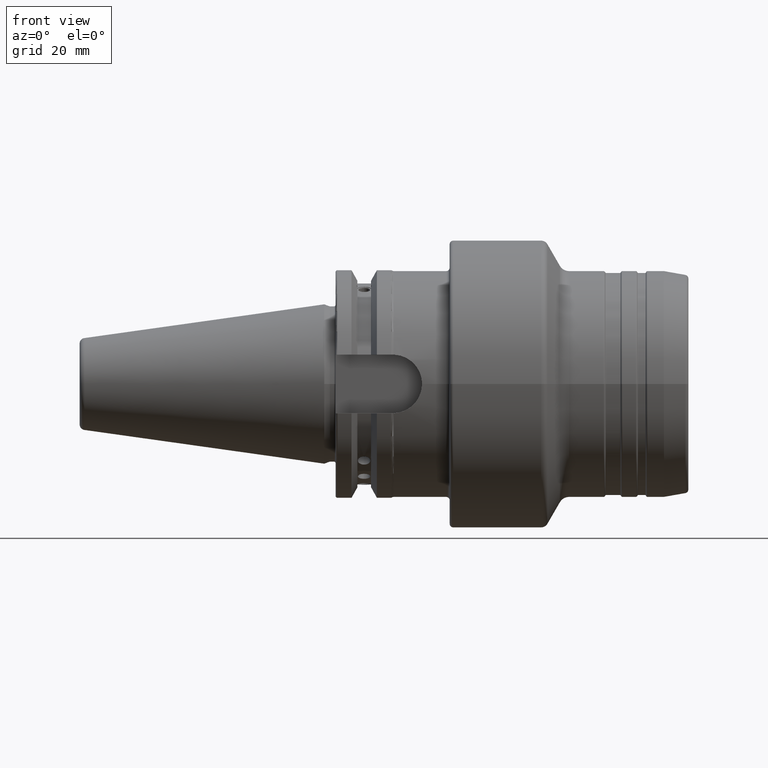
[diagram: clean part render]
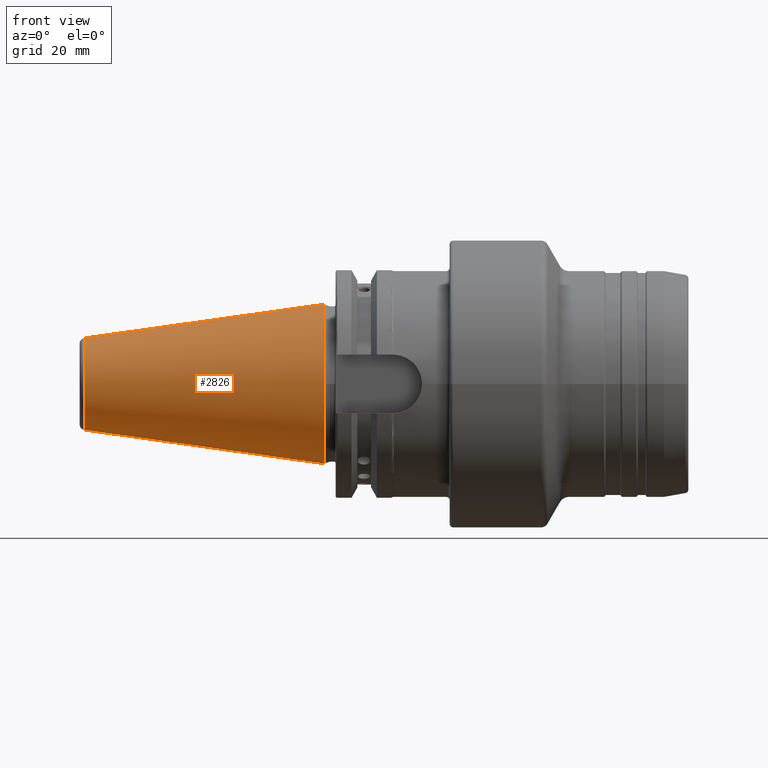
[diagram: same view with one face highlighted and labeled with its STEP entity id]
A machine part, front view. The second image highlights one B-rep face of the part: STEP entity #2826.
In plain terms, the highlighted conical surface has half-angle 8 deg.
Its self-contained STEP definition (entity closure, byte-faithful):
#21=CARTESIAN_POINT('',(9.404160894455E-6,0.E0,-8.750350968063E-1));
#39=CARTESIAN_POINT('',(9.404160894899E-6,0.E0,8.750350968063E-1));
#40=CARTESIAN_POINT('',(9.404160894940E-6,-4.579037552743E-2,
8.750350968063E-1));
#41=CARTESIAN_POINT('',(4.001135143371E-4,-1.373905519960E-1,
8.678370960029E-1));
#42=CARTESIAN_POINT('',(2.430634477279E-4,-2.714571991100E-1,
8.356601185359E-1));
#43=CARTESIAN_POINT('',(2.851996840013E-4,-3.988534876110E-1,
7.829006255476E-1));
#44=CARTESIAN_POINT('',(2.737048055116E-4,-5.164185767630E-1,
7.108648007007E-1));
#45=CARTESIAN_POINT('',(2.775480831918E-4,-6.212704616941E-1,
6.213213286738E-1));
#46=CARTESIAN_POINT('',(2.736698509498E-4,-7.108219821237E-1,
5.164781244212E-1));
#47=CARTESIAN_POINT('',(2.853395022269E-4,-7.828674017787E-1,
3.989159160235E-1));
#48=CARTESIAN_POINT('',(2.425391293499E-4,-8.356412448259E-1,
2.715298521811E-1));
#49=CARTESIAN_POINT('',(4.020709695703E-4,-8.678091184727E-1,
1.374582554541E-1));
#50=CARTESIAN_POINT('',(5.186310889964E-6,-8.750759621837E-1,
4.581760021255E-2));
#51=CARTESIAN_POINT('',(5.184256354429E-6,-8.750759618949E-1,
-8.684607494127E-10));
#53=CARTESIAN_POINT('',(5.184256354429E-6,-8.750759618949E-1,
-8.684607494127E-10));
#54=CARTESIAN_POINT('',(5.185977047086E-6,-8.750759621367E-1,
-4.581760194087E-2));
#55=CARTESIAN_POINT('',(4.020711245056E-4,-8.678091184959E-1,
-1.374582546258E-1));
#56=CARTESIAN_POINT('',(2.425390878299E-4,-8.356412448387E-1,
-2.715298523387E-1));
#57=CARTESIAN_POINT('',(2.853395133448E-4,-7.828674017975E-1,
-3.989159159341E-1));
#58=CARTESIAN_POINT('',(2.736698479611E-4,-7.108219821412E-1,
-5.164781244139E-1));
#59=CARTESIAN_POINT('',(2.775480839808E-4,-6.212704616938E-1,
-6.213213286701E-1));
#60=CARTESIAN_POINT('',(2.737048052858E-4,-5.164185767854E-1,
-7.108648006840E-1));
#61=CARTESIAN_POINT('',(2.851996840459E-4,-3.988534876344E-1,
-7.829006255362E-1));
#62=CARTESIAN_POINT('',(2.430634477005E-4,-2.714571991277E-1,
-8.356601185298E-1));
#63=CARTESIAN_POINT('',(4.001135143223E-4,-1.373905520255E-1,
-8.678370959983E-1));
#64=CARTESIAN_POINT('',(9.404160894441E-6,-4.579037553948E-2,
-8.750350968063E-1));
#65=CARTESIAN_POINT('',(9.404160894455E-6,0.E0,-8.750350968063E-1));
#67=DIRECTION('',(-9.902663201239E-1,9.568653732772E-12,1.391855424545E-1));
#68=VECTOR('',#67,2.662132967208E0);
#69=CARTESIAN_POINT('',(9.404160894455E-6,0.E0,-8.750350968063E-1));
#70=LINE('',#69,#68);
#71=CARTESIAN_POINT('',(-2.636211212957E0,0.E0,0.E0));
#72=DIRECTION('',(-1.E0,0.E0,0.E0));
#73=DIRECTION('',(0.E0,0.E0,-1.E0));
#74=AXIS2_PLACEMENT_3D('',#71,#72,#73);
#76=DIRECTION('',(-9.902663201239E-1,-9.568651588075E-12,-1.391855424545E-1));
#77=VECTOR('',#76,2.662132967208E0);
#78=CARTESIAN_POINT('',(9.404160894899E-6,0.E0,8.750350968063E-1));
#79=LINE('',#78,#77);
#2419=CARTESIAN_POINT('',(-2.636211212957E0,0.E0,-5.045046756793E-1));
#2420=CARTESIAN_POINT('',(-2.636211212957E0,0.E0,5.045046756793E-1));
#2421=VERTEX_POINT('',#2419);
#2422=VERTEX_POINT('',#2420);
#2423=VERTEX_POINT('',#39);
#2424=VERTEX_POINT('',#51);
#2430=VERTEX_POINT('',#21);
#2812=CARTESIAN_POINT('',(-1.317954174432E0,0.E0,0.E0));
#2813=DIRECTION('',(1.E0,0.E0,0.E0));
#2814=DIRECTION('',(0.E0,0.E0,1.E0));
#2815=AXIS2_PLACEMENT_3D('',#2812,#2813,#2814);
#2816=CONICAL_SURFACE('',#2815,6.897736202258E-1,8.E0);
#2817=ORIENTED_EDGE('',*,*,#2800,.T.);
#2819=ORIENTED_EDGE('',*,*,#2818,.T.);
#2820=ORIENTED_EDGE('',*,*,#2788,.T.);
#2822=ORIENTED_EDGE('',*,*,#2821,.T.);
#2823=ORIENTED_EDGE('',*,*,#2784,.F.);
#2824=EDGE_LOOP('',(#2817,#2819,#2820,#2822,#2823));
#2825=FACE_OUTER_BOUND('',#2824,.F.);
#2826=ADVANCED_FACE('',(#2825),#2816,.T.);
#52=B_SPLINE_CURVE_WITH_KNOTS('',3,(#39,#40,#41,#42,#43,#44,#45,#46,#47,#48,#49,
#50,#51),.UNSPECIFIED.,.F.,.F.,(4,1,1,1,1,1,1,1,1,1,4),(0.E0,1.E-1,2.E-1,3.E-1,
4.E-1,5.E-1,6.E-1,7.E-1,8.E-1,9.E-1,1.E0),.UNSPECIFIED.);
#66=B_SPLINE_CURVE_WITH_KNOTS('',3,(#53,#54,#55,#56,#57,#58,#59,#60,#61,#62,#63,
#64,#65),.UNSPECIFIED.,.F.,.F.,(4,1,1,1,1,1,1,1,1,1,4),(0.E0,1.E-1,2.E-1,3.E-1,
4.E-1,5.E-1,6.E-1,7.E-1,8.E-1,9.E-1,1.E0),.UNSPECIFIED.);
#75=CIRCLE('',#74,5.045046756793E-1);
#2784=EDGE_CURVE('',#2423,#2422,#79,.T.);
#2788=EDGE_CURVE('',#2430,#2421,#70,.T.);
#2800=EDGE_CURVE('',#2423,#2424,#52,.T.);
#2818=EDGE_CURVE('',#2424,#2430,#66,.T.);
#2821=EDGE_CURVE('',#2421,#2422,#75,.T.);